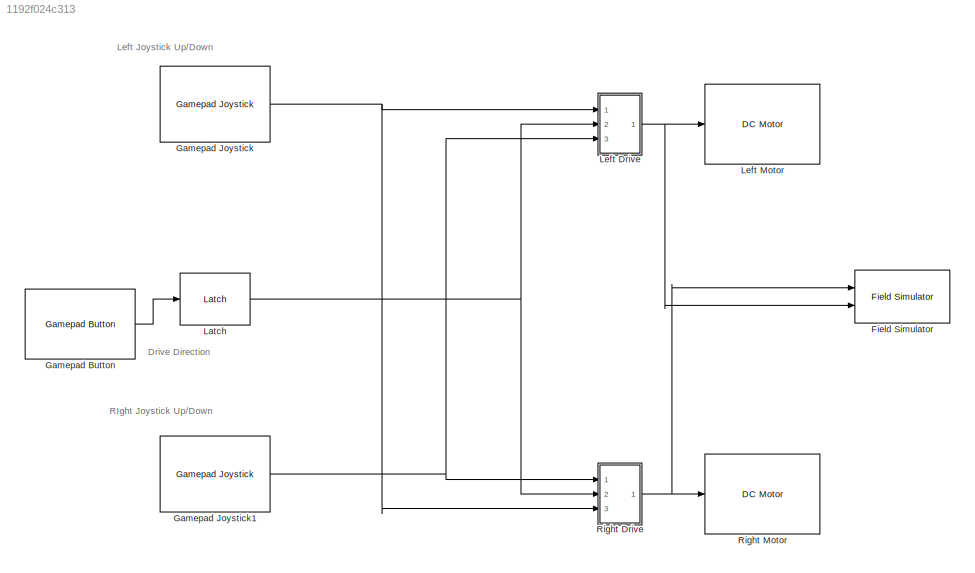
MODEL slx_1192f024c313
KIND model
CONFIG AbsTol = auto
CONFIG EnableMultiTasking = off
CONFIG FixedStep = auto
CONFIG MaxStep = auto
CONFIG MinStep = auto
CONFIG RelTol = 1e-3
CONFIG SampleTimeConstraint = Unconstrained
CONFIG SolverName = VariableStepAuto
CONFIG StartTime = 0.0
CONFIG StopTime = 10.0
BLOCK [Reference] Field Simulator  REF=vexcommonlib/Field Simulator
  Ports = [2]
  SourceBlock = vexcommonlib/Field Simulator
  SourceProductBaseCode = EC_VEX_MICRO,VEXV5
  SourceType = Field Simulator
BLOCK [Reference] Gamepad Button  REF=vexarmcortexlib/Gamepad/Gamepad Button
  Ports = [1, 1]
  SourceBlock = vexarmcortexlib/Gamepad/Gamepad Button
  SourceProductBaseCode = EC_VEX_MICRO
  SourceType = Gamepad Button
BLOCK [Reference] Gamepad Joystick  REF=vexarmcortexlib/Gamepad/Gamepad Joystick
  Ports = [1, 1]
  SourceBlock = vexarmcortexlib/Gamepad/Gamepad Joystick
  SourceProductBaseCode = EC_VEX_MICRO
  SourceType = Gamepad Joystick
BLOCK [Reference] Gamepad Joystick1  REF=vexarmcortexlib/Gamepad/Gamepad Joystick
  Ports = [1, 1]
  SourceBlock = vexarmcortexlib/Gamepad/Gamepad Joystick
  SourceProductBaseCode = EC_VEX_MICRO
  SourceType = Gamepad Joystick
BLOCK [Reference] Latch  REF=vexcommonlib/Latch
  Ports = [1, 1]
  SourceBlock = vexcommonlib/Latch
  SourceProductBaseCode = EC_VEX_MICRO,VEXV5
  SourceType = Latch
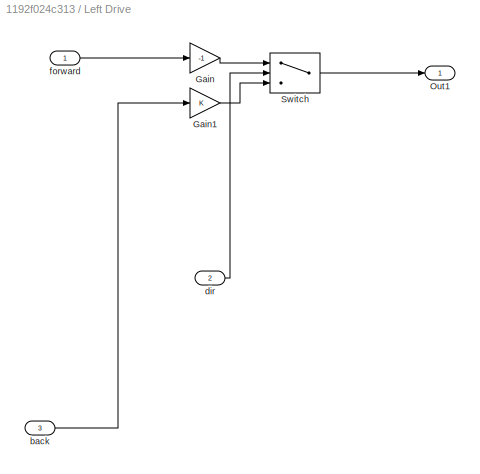
BLOCK [SubSystem] Left Drive
  Ports = [3, 1]
  RequestExecContextInheritance = off
BLOCK [Gain] Left Drive/Gain
  Gain = -1
BLOCK [Gain] Left Drive/Gain1
BLOCK [Outport] Left Drive/Out1
BLOCK [Switch] Left Drive/Switch
  Criteria = u2 > Threshold
  InputSameDT = off
  SaturateOnIntegerOverflow = off
BLOCK [Inport] Left Drive/back
  Port = 3
BLOCK [Inport] Left Drive/dir
  Port = 2
BLOCK [Inport] Left Drive/forward
BLOCK [Reference] Left Motor  REF=vexarmcortexlib/Actuators/DC Motor
  Ports = [1, 1]
  SourceBlock = vexarmcortexlib/Actuators/DC Motor
  SourceProductBaseCode = EC_VEX_MICRO
  SourceType = DC Motor
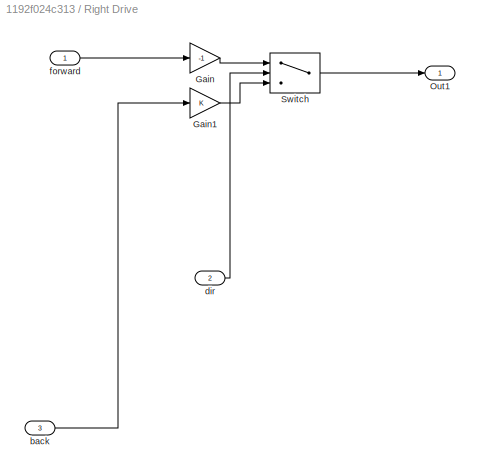
BLOCK [SubSystem] Right Drive
  Ports = [3, 1]
  RequestExecContextInheritance = off
BLOCK [Gain] Right Drive/Gain
  Gain = -1
BLOCK [Gain] Right Drive/Gain1
BLOCK [Outport] Right Drive/Out1
BLOCK [Switch] Right Drive/Switch
  Criteria = u2 > Threshold
  InputSameDT = off
  SaturateOnIntegerOverflow = off
BLOCK [Inport] Right Drive/back
  Port = 3
BLOCK [Inport] Right Drive/dir
  Port = 2
BLOCK [Inport] Right Drive/forward
BLOCK [Reference] Right Motor  REF=vexarmcortexlib/Actuators/DC Motor
  Ports = [1, 1]
  SourceBlock = vexarmcortexlib/Actuators/DC Motor
  SourceProductBaseCode = EC_VEX_MICRO
  SourceType = DC Motor
ANNOTATION (root): Drive Direction
ANNOTATION (root): Left Joystick Up/Down
ANNOTATION (root): RIght Joystick Up/Down
LINE Gamepad Button:1 -> Latch:1
NET Gamepad Joystick1:1 -> Left Drive:3, Right Drive:1
NET Gamepad Joystick:1 -> Left Drive:1, Right Drive:3
NET Latch:1 -> Left Drive:2, Right Drive:2
LINE Left Drive/Gain1:1 -> Left Drive/Switch:3
LINE Left Drive/Gain:1 -> Left Drive/Switch:1
LINE Left Drive/Switch:1 -> Left Drive/Out1:1
LINE Left Drive/back:1 -> Left Drive/Gain1:1
LINE Left Drive/dir:1 -> Left Drive/Switch:2
LINE Left Drive/forward:1 -> Left Drive/Gain:1
NET Left Drive:1 -> Field Simulator:2, Left Motor:1
LINE Right Drive/Gain1:1 -> Right Drive/Switch:3
LINE Right Drive/Gain:1 -> Right Drive/Switch:1
LINE Right Drive/Switch:1 -> Right Drive/Out1:1
LINE Right Drive/back:1 -> Right Drive/Gain1:1
LINE Right Drive/dir:1 -> Right Drive/Switch:2
LINE Right Drive/forward:1 -> Right Drive/Gain:1
NET Right Drive:1 -> Field Simulator:1, Right Motor:1
note: NET lines group one-source signal fan-out (src -> all destinations, sorted); 1:1 wires keep LINE
